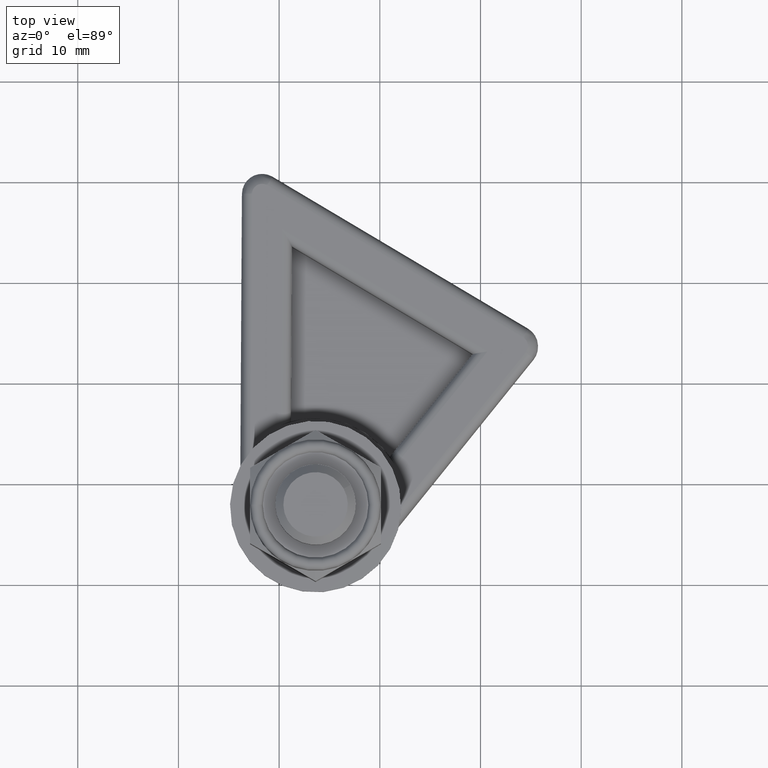
[diagram: clean part render]
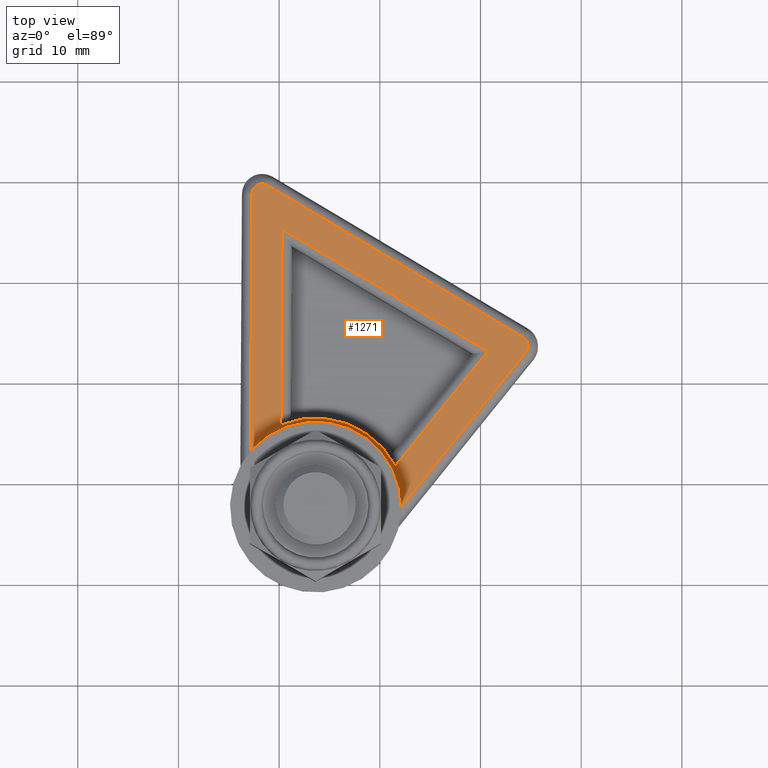
[diagram: same view with one face highlighted and labeled with its STEP entity id]
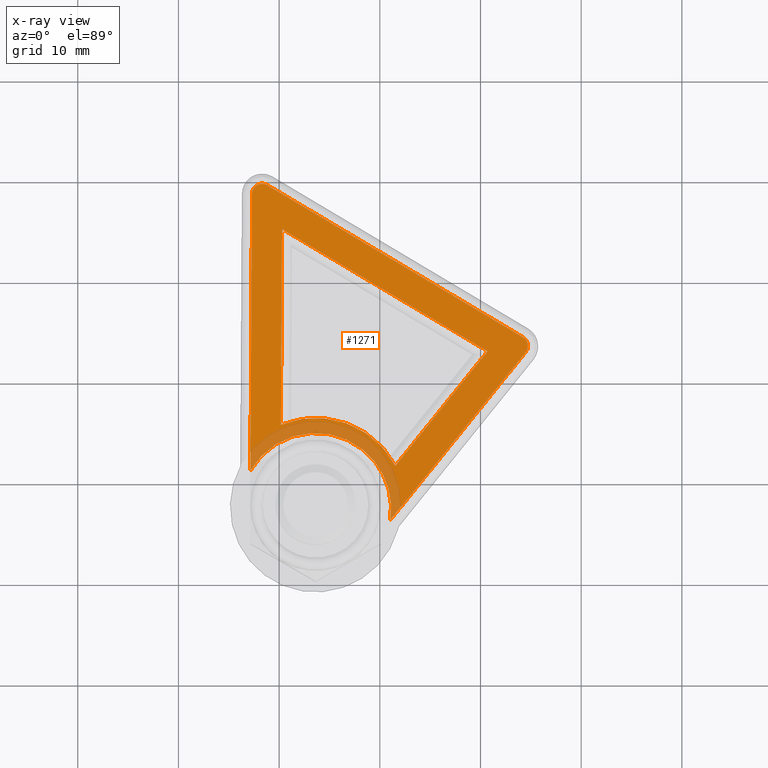
[diagram: x-ray of the same camera — body ghosted, the highlighted face saturated]
A machine part, top view. The second image highlights one B-rep face of the part: STEP entity #1271.
The next image is the same camera in x-ray: the body ghosted, the highlighted face saturated — about 10% of this face is hidden behind the body in this view.
In plain terms, the highlighted planar face has unit normal (-0, 0, -1).
Its self-contained STEP definition (entity closure, byte-faithful):
#144=LINE('',#2357,#209);
#146=LINE('',#2381,#211);
#148=LINE('',#2404,#213);
#152=LINE('',#2417,#217);
#154=LINE('',#2423,#219);
#155=LINE('',#2436,#220);
#209=VECTOR('',#1868,10.);
#211=VECTOR('',#1878,10.);
#213=VECTOR('',#1888,10.);
#217=VECTOR('',#1902,10.);
#219=VECTOR('',#1908,10.);
#220=VECTOR('',#1911,10.);
#261=FACE_BOUND('',#426,.T.);
#338=FACE_OUTER_BOUND('',#425,.T.);
#425=EDGE_LOOP('',(#1145,#1146,#1147,#1148,#1149,#1150,#1151));
#426=EDGE_LOOP('',(#1152,#1153,#1154,#1155));
#488=CIRCLE('',#1515,7.5);
#489=CIRCLE('',#1516,7.5);
#497=CIRCLE('',#1530,1.);
#501=CIRCLE('',#1535,1.);
#503=CIRCLE('',#1551,9.);
#592=VERTEX_POINT('',#2313);
#593=VERTEX_POINT('',#2315);
#596=VERTEX_POINT('',#2329);
#601=VERTEX_POINT('',#2355);
#602=VERTEX_POINT('',#2373);
#604=VERTEX_POINT('',#2378);
#606=VERTEX_POINT('',#2398);
#609=VERTEX_POINT('',#2414);
#610=VERTEX_POINT('',#2416);
#612=VERTEX_POINT('',#2422);
#613=VERTEX_POINT('',#2435);
#751=EDGE_CURVE('',#592,#593,#488,.T.);
#756=EDGE_CURVE('',#596,#592,#489,.T.);
#766=EDGE_CURVE('',#601,#593,#144,.T.);
#768=EDGE_CURVE('',#602,#601,#497,.T.);
#771=EDGE_CURVE('',#604,#602,#146,.T.);
#774=EDGE_CURVE('',#606,#604,#501,.T.);
#776=EDGE_CURVE('',#596,#606,#148,.T.);
#781=EDGE_CURVE('',#610,#609,#152,.T.);
#784=EDGE_CURVE('',#612,#610,#154,.T.);
#786=EDGE_CURVE('',#609,#613,#155,.T.);
#797=EDGE_CURVE('',#613,#612,#503,.T.);
#1145=ORIENTED_EDGE('',*,*,#776,.T.);
#1146=ORIENTED_EDGE('',*,*,#774,.T.);
#1147=ORIENTED_EDGE('',*,*,#771,.T.);
#1148=ORIENTED_EDGE('',*,*,#768,.T.);
#1149=ORIENTED_EDGE('',*,*,#766,.T.);
#1150=ORIENTED_EDGE('',*,*,#751,.F.);
#1151=ORIENTED_EDGE('',*,*,#756,.F.);
#1152=ORIENTED_EDGE('',*,*,#797,.T.);
#1153=ORIENTED_EDGE('',*,*,#784,.T.);
#1154=ORIENTED_EDGE('',*,*,#781,.T.);
#1155=ORIENTED_EDGE('',*,*,#786,.T.);
#1187=PLANE('',#1552);
#1271=ADVANCED_FACE('',(#338,#261),#1187,.F.);
#1515=AXIS2_PLACEMENT_3D('',#2316,#1835,#1836);
#1516=AXIS2_PLACEMENT_3D('',#2336,#1839,#1840);
#1530=AXIS2_PLACEMENT_3D('',#2375,#1871,#1872);
#1535=AXIS2_PLACEMENT_3D('',#2401,#1883,#1884);
#1551=AXIS2_PLACEMENT_3D('',#2466,#1932,#1933);
#1552=AXIS2_PLACEMENT_3D('',#2467,#1934,#1935);
#1835=DIRECTION('center_axis',(0.,0.,-1.));
#1836=DIRECTION('ref_axis',(-1.,0.,0.));
#1839=DIRECTION('center_axis',(0.,0.,-1.));
#1840=DIRECTION('ref_axis',(-1.,0.,0.));
#1868=DIRECTION('',(0.782336613391328,-0.622855860811623,0.));
#1871=DIRECTION('center_axis',(0.,0.,-1.));
#1872=DIRECTION('ref_axis',(-0.369300048108405,0.929310214334874,0.));
#1878=DIRECTION('',(0.141421356237309,0.989949493661167,0.));
#1883=DIRECTION('center_axis',(0.,0.,-1.));
#1884=DIRECTION('ref_axis',(-0.755453954995706,-0.655201741360129,0.));
#1888=DIRECTION('',(-1.,-1.21115239050017E-16,0.));
#1902=DIRECTION('',(-0.141421356237309,-0.989949493661167,0.));
#1908=DIRECTION('',(-0.782336613391328,0.622855860811623,0.));
#1911=DIRECTION('',(1.,1.21115239050017E-16,0.));
#1932=DIRECTION('center_axis',(0.,0.,-1.));
#1933=DIRECTION('ref_axis',(-1.,0.,0.));
#1934=DIRECTION('center_axis',(0.,0.,1.));
#1935=DIRECTION('ref_axis',(1.,0.,0.));
#2313=CARTESIAN_POINT('',(-7.5,-9.18485099360515E-16,-8.));
#2315=CARTESIAN_POINT('',(1.12132752683618,7.41570121954488,-8.));
#2316=CARTESIAN_POINT('Origin',(0.,0.,-8.));
#2329=CARTESIAN_POINT('',(-3.74165738677394,-6.5,-8.));
#2336=CARTESIAN_POINT('Origin',(0.,0.,-8.));
#2355=CARTESIAN_POINT('',(-20.3910652391082,24.5427532902214,-8.));
#2357=CARTESIAN_POINT('',(4.04856320095985,5.08518790290327,-8.));
#2373=CARTESIAN_POINT('',(-22.003870593581,23.9018380330674,-8.));
#2375=CARTESIAN_POINT('Origin',(-21.0139210999198,23.7604166768301,-8.));
#2378=CARTESIAN_POINT('',(-26.1839301188425,-5.3585786437627,-8.));
#2381=CARTESIAN_POINT('',(-23.2100505102462,15.4585786164113,-8.));
#2398=CARTESIAN_POINT('',(-25.1939806251813,-6.5,-8.));
#2401=CARTESIAN_POINT('Origin',(-25.1939806251813,-5.5,-8.));
#2404=CARTESIAN_POINT('',(-13.749999864912,-6.5,-8.));
#2414=CARTESIAN_POINT('',(-22.8879612503626,-3.5,-8.));
#2416=CARTESIAN_POINT('',(-19.5278421998397,20.0208333536602,-8.));
#2417=CARTESIAN_POINT('',(-20.2402020292627,15.0343145476993,-8.));
#2422=CARTESIAN_POINT('',(-4.30679700310024,7.9026261188346,-8.));
#2423=CARTESIAN_POINT('',(2.17999561852498,2.73817806272929,-8.));
#2435=CARTESIAN_POINT('',(-8.2915619758885,-3.5,-8.));
#2436=CARTESIAN_POINT('',(-13.749999864912,-3.5,-8.));
#2466=CARTESIAN_POINT('Origin',(0.,0.,-8.));
#2467=CARTESIAN_POINT('Origin',(2.70176010051679E-7,-9.44157834967426E-8,
-8.));